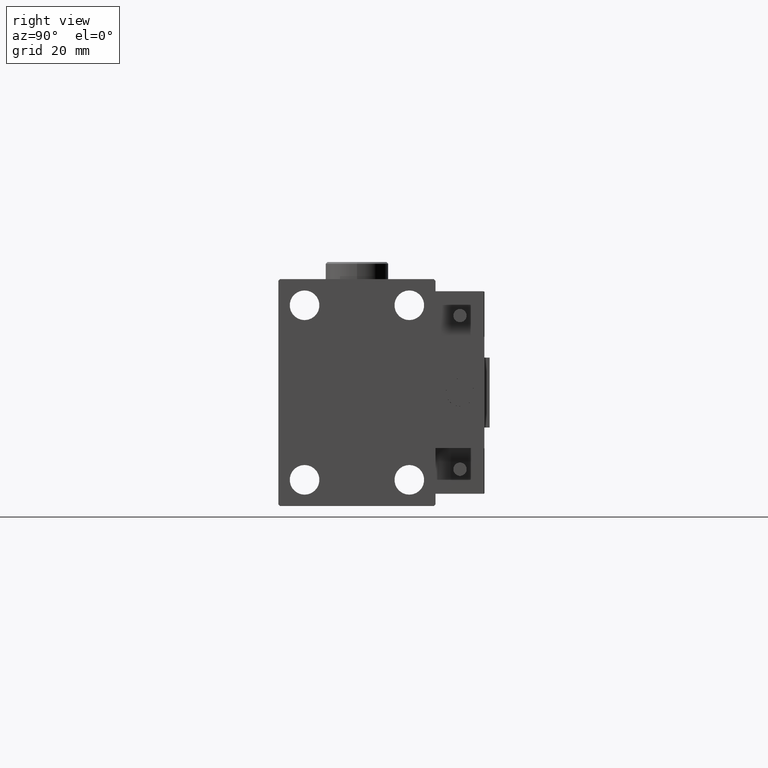
[diagram: clean part render]
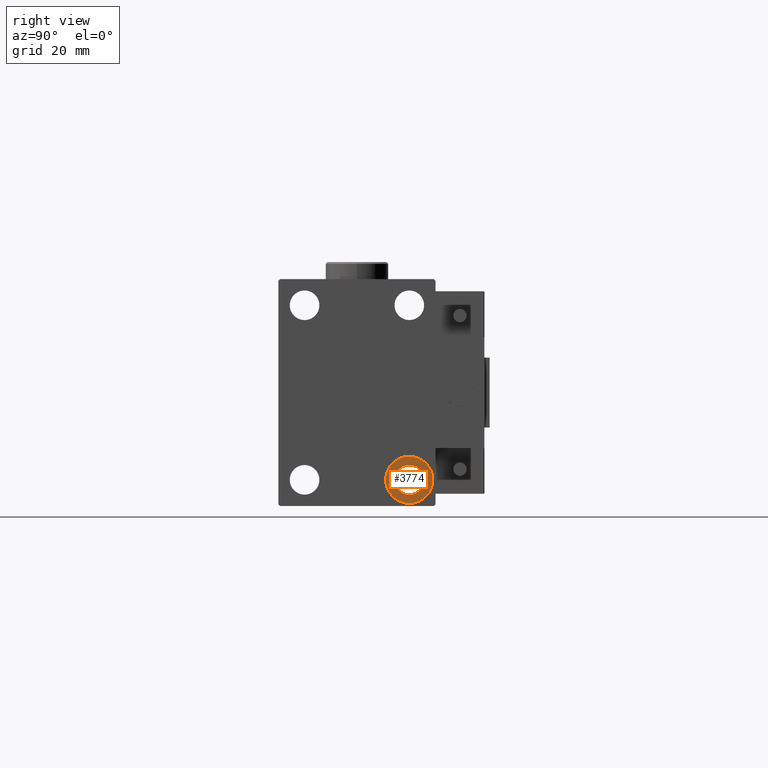
[diagram: same view with one face highlighted and labeled with its STEP entity id]
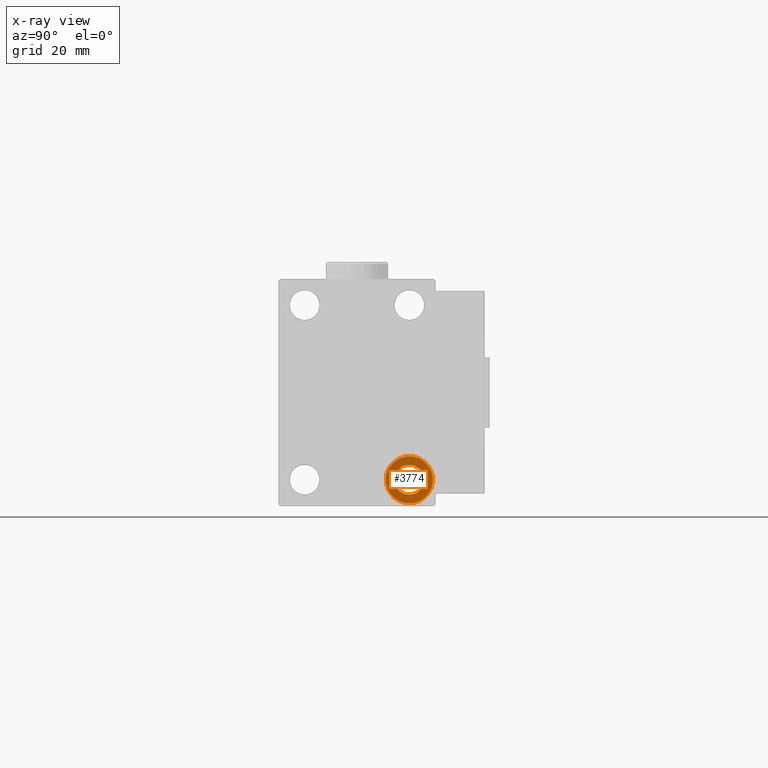
[diagram: x-ray of the same camera — body ghosted, the highlighted face saturated]
A machine part, right view. The second image highlights one B-rep face of the part: STEP entity #3774.
The next image is the same camera in x-ray: the body ghosted, the highlighted face saturated — about 0% of this face is hidden behind the body in this view.
In plain terms, the highlighted planar face has unit normal (1, 0, 0).
Its self-contained STEP definition (entity closure, byte-faithful):
#2590 = CARTESIAN_POINT ( 'NONE',  ( 61.00000000000000711, 14.99999999999999645, -25.00000000000000000 ) ) ;
#3423 = AXIS2_PLACEMENT_3D ( 'NONE', #23250, #5230, #35907 ) ;
#3774 = ADVANCED_FACE ( 'NONE', ( #37227, #4513 ), #12496, .T. ) ;
#4501 = EDGE_CURVE ( 'NONE', #11643, #31830, #25880, .T. ) ;
#4513 = FACE_BOUND ( 'NONE', #43550, .T. ) ;
#4935 = CARTESIAN_POINT ( 'NONE',  ( 61.00000000000000711, 14.99999999999999645, -18.25000000000000355 ) ) ;
#5230 = DIRECTION ( 'NONE',  ( -1.000000000000000000, -0.000000000000000000, -0.000000000000000000 ) ) ;
#6450 = DIRECTION ( 'NONE',  ( -1.000000000000000000, -0.000000000000000000, -0.000000000000000000 ) ) ;
#6684 = CARTESIAN_POINT ( 'NONE',  ( 61.00000000000000711, 14.99999999999999645, -31.75000000000000000 ) ) ;
#7816 = DIRECTION ( 'NONE',  ( 0.000000000000000000, 0.000000000000000000, 1.000000000000000000 ) ) ;
#10716 = ORIENTED_EDGE ( 'NONE', *, *, #4501, .T. ) ;
#11643 = VERTEX_POINT ( 'NONE', #28633 ) ;
#12496 = PLANE ( 'NONE',  #30291 ) ;
#13403 = CARTESIAN_POINT ( 'NONE',  ( 61.00000000000000711, 14.99999999999999645, -20.75000000000000355 ) ) ;
#16068 = ORIENTED_EDGE ( 'NONE', *, *, #16383, .F. ) ;
#16383 = EDGE_CURVE ( 'NONE', #43773, #51668, #17828, .T. ) ;
#17098 = CARTESIAN_POINT ( 'NONE',  ( 61.00000000000000711, 14.99999999999999645, -25.00000000000000000 ) ) ;
#17828 = CIRCLE ( 'NONE', #38909, 6.749999999999999112 ) ;
#19369 = AXIS2_PLACEMENT_3D ( 'NONE', #2590, #6450, #51346 ) ;
#20312 = DIRECTION ( 'NONE',  ( 0.000000000000000000, 0.000000000000000000, -1.000000000000000000 ) ) ;
#21749 = CIRCLE ( 'NONE', #3423, 4.249999999999996447 ) ;
#23250 = CARTESIAN_POINT ( 'NONE',  ( 61.00000000000000711, 14.99999999999999645, -25.00000000000000000 ) ) ;
#23906 = CARTESIAN_POINT ( 'NONE',  ( 61.00000000000000711, 14.99999999999999645, -25.00000000000000000 ) ) ;
#24253 = DIRECTION ( 'NONE',  ( 0.000000000000000000, 0.000000000000000000, 1.000000000000000000 ) ) ;
#25880 = CIRCLE ( 'NONE', #34685, 4.249999999999996447 ) ;
#28633 = CARTESIAN_POINT ( 'NONE',  ( 61.00000000000000711, 14.99999999999999645, -29.25000000000000000 ) ) ;
#29725 = ORIENTED_EDGE ( 'NONE', *, *, #40636, .T. ) ;
#29899 = CIRCLE ( 'NONE', #19369, 6.749999999999999112 ) ;
#30291 = AXIS2_PLACEMENT_3D ( 'NONE', #45736, #38042, #7816 ) ;
#31830 = VERTEX_POINT ( 'NONE', #13403 ) ;
#31895 = EDGE_LOOP ( 'NONE', ( #50903, #16068 ) ) ;
#34685 = AXIS2_PLACEMENT_3D ( 'NONE', #23906, #40674, #20312 ) ;
#35907 = DIRECTION ( 'NONE',  ( 0.000000000000000000, 0.000000000000000000, -1.000000000000000000 ) ) ;
#37227 = FACE_OUTER_BOUND ( 'NONE', #31895, .T. ) ;
#38042 = DIRECTION ( 'NONE',  ( 1.000000000000000000, 0.000000000000000000, -0.000000000000000000 ) ) ;
#38909 = AXIS2_PLACEMENT_3D ( 'NONE', #17098, #53930, #24253 ) ;
#40636 = EDGE_CURVE ( 'NONE', #31830, #11643, #21749, .T. ) ;
#40674 = DIRECTION ( 'NONE',  ( -1.000000000000000000, -0.000000000000000000, -0.000000000000000000 ) ) ;
#43550 = EDGE_LOOP ( 'NONE', ( #29725, #10716 ) ) ;
#43773 = VERTEX_POINT ( 'NONE', #4935 ) ;
#45736 = CARTESIAN_POINT ( 'NONE',  ( 61.00000000000000711, 14.99999999999999645, -25.00000000000000000 ) ) ;
#47137 = EDGE_CURVE ( 'NONE', #51668, #43773, #29899, .T. ) ;
#50903 = ORIENTED_EDGE ( 'NONE', *, *, #47137, .F. ) ;
#51346 = DIRECTION ( 'NONE',  ( 0.000000000000000000, 0.000000000000000000, 1.000000000000000000 ) ) ;
#51668 = VERTEX_POINT ( 'NONE', #6684 ) ;
#53930 = DIRECTION ( 'NONE',  ( -1.000000000000000000, -0.000000000000000000, -0.000000000000000000 ) ) ;